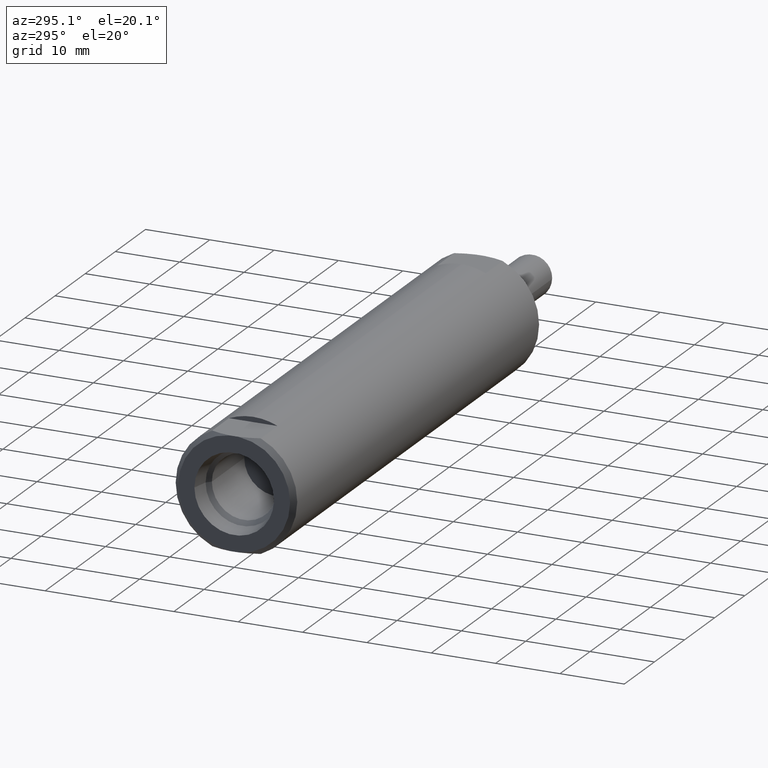
[diagram: clean part render]
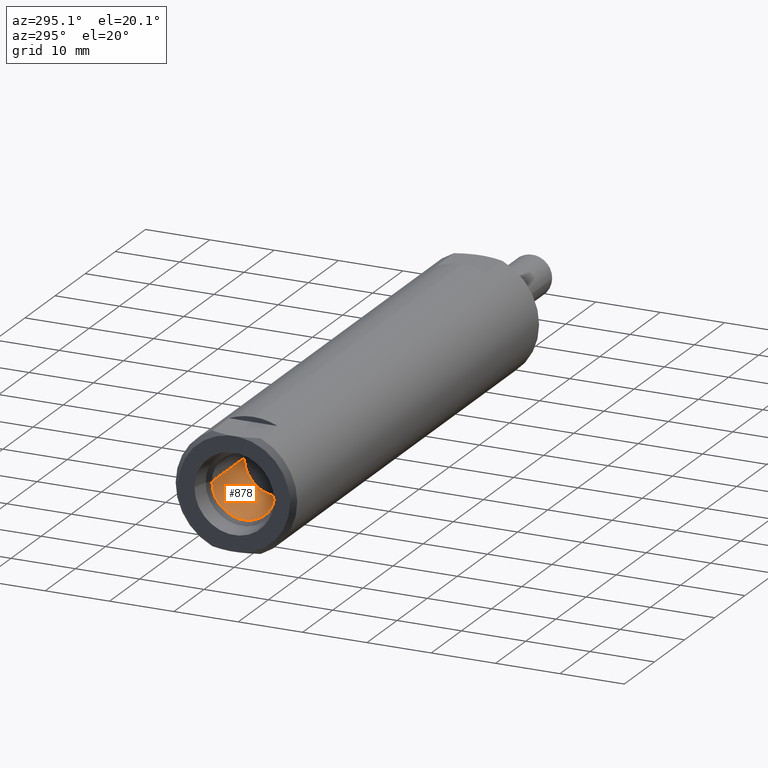
[diagram: same view with one face highlighted and labeled with its STEP entity id]
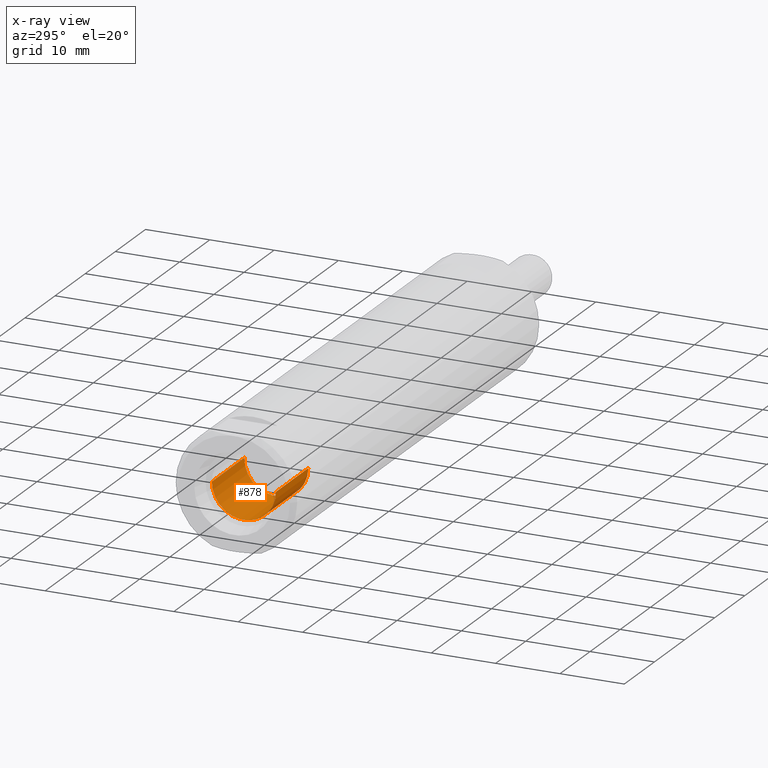
[diagram: x-ray of the same camera — body ghosted, the highlighted face saturated]
A machine part, auxiliary view. The second image highlights one B-rep face of the part: STEP entity #878.
The next image is the same camera in x-ray: the body ghosted, the highlighted face saturated — about 1% of this face is hidden behind the body in this view.
In plain terms, the highlighted cylindrical surface (edge-blend (fillet) strip) has radius 4.9784 mm, axis along (-1, 0, 0).
Its self-contained STEP definition (entity closure, byte-faithful):
#214=CARTESIAN_POINT('',(1.266380655522E-1,0.E0,0.E0));
#215=DIRECTION('',(-1.E0,0.E0,0.E0));
#216=DIRECTION('',(0.E0,1.E0,0.E0));
#217=AXIS2_PLACEMENT_3D('',#214,#215,#216);
#222=CARTESIAN_POINT('',(5.5E-1,0.E0,0.E0));
#223=DIRECTION('',(-1.E0,0.E0,0.E0));
#224=DIRECTION('',(0.E0,1.E0,0.E0));
#225=AXIS2_PLACEMENT_3D('',#222,#223,#224);
#230=DIRECTION('',(-1.E0,0.E0,0.E0));
#231=VECTOR('',#230,4.233619344478E-1);
#232=CARTESIAN_POINT('',(5.5E-1,1.96E-1,0.E0));
#233=LINE('',#232,#231);
#237=DIRECTION('',(-1.E0,0.E0,0.E0));
#238=VECTOR('',#237,4.233619344478E-1);
#239=CARTESIAN_POINT('',(5.5E-1,-1.96E-1,0.E0));
#240=LINE('',#239,#238);
#694=CARTESIAN_POINT('',(5.5E-1,1.96E-1,0.E0));
#695=CARTESIAN_POINT('',(1.266380655522E-1,1.96E-1,0.E0));
#696=VERTEX_POINT('',#694);
#697=VERTEX_POINT('',#695);
#700=CARTESIAN_POINT('',(5.5E-1,-1.96E-1,0.E0));
#701=CARTESIAN_POINT('',(1.266380655522E-1,-1.96E-1,0.E0));
#702=VERTEX_POINT('',#700);
#703=VERTEX_POINT('',#701);
#864=CARTESIAN_POINT('',(5.775E-1,0.E0,0.E0));
#865=DIRECTION('',(-1.E0,0.E0,0.E0));
#866=DIRECTION('',(0.E0,1.E0,0.E0));
#867=AXIS2_PLACEMENT_3D('',#864,#865,#866);
#868=CYLINDRICAL_SURFACE('',#867,1.96E-1);
#870=ORIENTED_EDGE('',*,*,#869,.F.);
#872=ORIENTED_EDGE('',*,*,#871,.T.);
#874=ORIENTED_EDGE('',*,*,#873,.T.);
#875=ORIENTED_EDGE('',*,*,#857,.F.);
#876=EDGE_LOOP('',(#870,#872,#874,#875));
#877=FACE_OUTER_BOUND('',#876,.F.);
#218=CIRCLE('',#217,1.96E-1);
#226=CIRCLE('',#225,1.96E-1);
#857=EDGE_CURVE('',#697,#703,#218,.T.);
#869=EDGE_CURVE('',#696,#697,#233,.T.);
#871=EDGE_CURVE('',#696,#702,#226,.T.);
#873=EDGE_CURVE('',#702,#703,#240,.T.);
#878=ADVANCED_FACE('',(#877),#868,.F.);